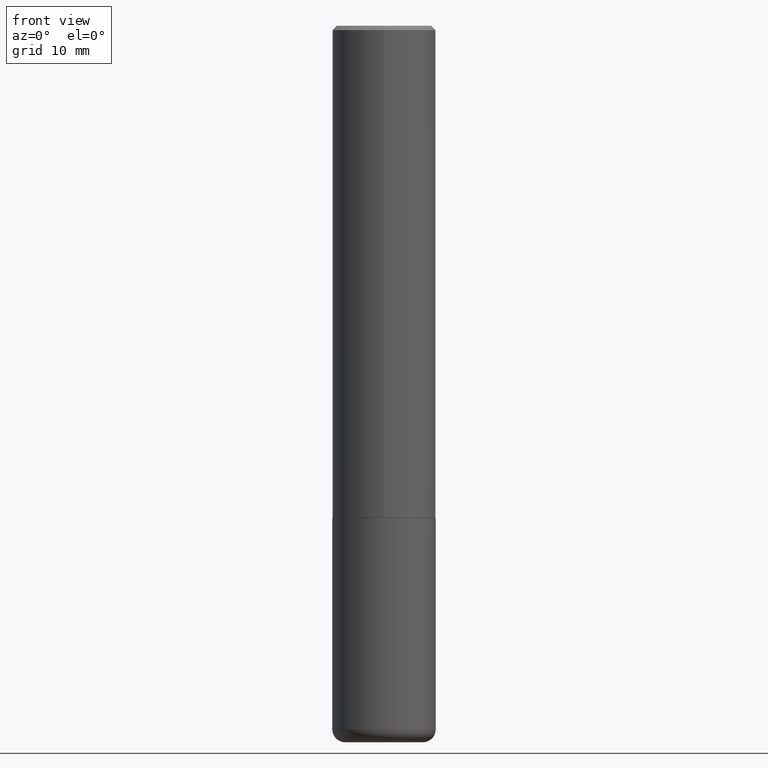
[diagram: clean part render]
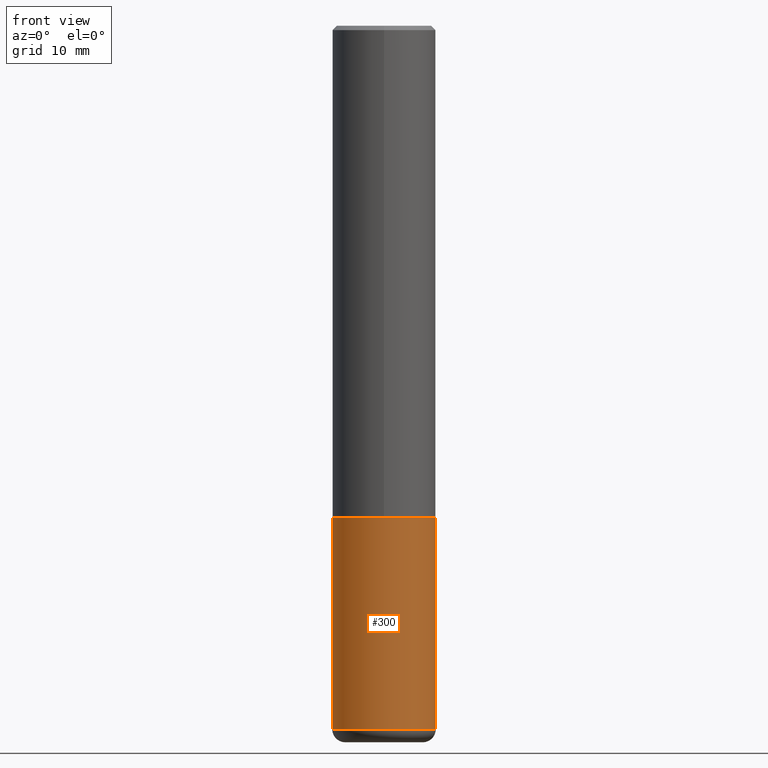
[diagram: same view with one face highlighted and labeled with its STEP entity id]
A machine part, front view. The second image highlights one B-rep face of the part: STEP entity #300.
In plain terms, the highlighted cylindrical surface (partial cylindrical patch) has radius 5.9995 mm, axis along (-0, 0, 1).
Its self-contained STEP definition (entity closure, byte-faithful):
#1 = DIRECTION ( 'NONE',  ( -2.445468806185136877E-29, 3.491481338843145188E-15, 1.000000000000000000 ) ) ;
#2 = CIRCLE ( 'NONE', #391, 0.2362000000000000210 ) ;
#21 = FACE_OUTER_BOUND ( 'NONE', #145, .T. ) ;
#25 = DIRECTION ( 'NONE',  ( -2.445468806185136597E-29, 3.491481338843145583E-15, 1.000000000000000000 ) ) ;
#27 = DIRECTION ( 'NONE',  ( 1.000000000000000000, -6.982962677686266711E-15, 4.876176775795936353E-29 ) ) ;
#36 = VECTOR ( 'NONE', #141, 39.37007874015748143 ) ;
#55 = CARTESIAN_POINT ( 'NONE',  ( -0.2361999999999999378, -9.522021045009570331E-15, -3.207900000000000418 ) ) ;
#57 = CYLINDRICAL_SURFACE ( 'NONE', #126, 0.2361999999999999933 ) ;
#61 = ORIENTED_EDGE ( 'NONE', *, *, #328, .F. ) ;
#64 = EDGE_CURVE ( 'NONE', #211, #255, #299, .T. ) ;
#74 = ORIENTED_EDGE ( 'NONE', *, *, #286, .T. ) ;
#84 = VERTEX_POINT ( 'NONE', #149 ) ;
#108 = CIRCLE ( 'NONE', #340, 0.2361999999999999933 ) ;
#116 = DIRECTION ( 'NONE',  ( -2.445468806185136597E-29, 3.491481338843145583E-15, 1.000000000000000000 ) ) ;
#126 = AXIS2_PLACEMENT_3D ( 'NONE', #155, #25, #27 ) ;
#130 = LINE ( 'NONE', #227, #385 ) ;
#141 = DIRECTION ( 'NONE',  ( -2.445468806185136877E-29, 3.491481338843145188E-15, 1.000000000000000000 ) ) ;
#145 = EDGE_LOOP ( 'NONE', ( #316, #74, #274, #61 ) ) ;
#149 = CARTESIAN_POINT ( 'NONE',  ( 0.2361999999999999378, -1.284969877134442325E-14, -3.207900000000000418 ) ) ;
#155 = CARTESIAN_POINT ( 'NONE',  ( 0.000000000000000000, 0.000000000000000000, 0.000000000000000000 ) ) ;
#211 = VERTEX_POINT ( 'NONE', #55 ) ;
#218 = DIRECTION ( 'NONE',  ( -2.445468806185136597E-29, 3.491481338843145583E-15, 1.000000000000000000 ) ) ;
#225 = DIRECTION ( 'NONE',  ( 1.000000000000000000, -6.982962677686264344E-15, 0.000000000000000000 ) ) ;
#227 = CARTESIAN_POINT ( 'NONE',  ( 0.2361999999999999933, -1.649375784469496131E-15, 1.151752954443000088E-29 ) ) ;
#255 = VERTEX_POINT ( 'NONE', #311 ) ;
#274 = ORIENTED_EDGE ( 'NONE', *, *, #373, .T. ) ;
#283 = CARTESIAN_POINT ( 'NONE',  ( 0.2361999999999999933, -9.484609056967400443E-15, -2.244100000000000428 ) ) ;
#284 = CARTESIAN_POINT ( 'NONE',  ( 5.487876547960065873E-29, -7.835233272497903917E-15, -2.244100000000000428 ) ) ;
#286 = EDGE_CURVE ( 'NONE', #211, #84, #2, .T. ) ;
#299 = LINE ( 'NONE', #305, #36 ) ;
#300 = ADVANCED_FACE ( 'NONE', ( #21 ), #57, .T. ) ;
#304 = VERTEX_POINT ( 'NONE', #283 ) ;
#305 = CARTESIAN_POINT ( 'NONE',  ( -0.2361999999999999933, 1.678301941865356591E-15, -1.161852468318208757E-29 ) ) ;
#311 = CARTESIAN_POINT ( 'NONE',  ( -0.2361999999999999933, -7.839476187821059716E-15, -2.244100000000000428 ) ) ;
#316 = ORIENTED_EDGE ( 'NONE', *, *, #64, .F. ) ;
#328 = EDGE_CURVE ( 'NONE', #255, #304, #108, .T. ) ;
#340 = AXIS2_PLACEMENT_3D ( 'NONE', #284, #218, #376 ) ;
#371 = CARTESIAN_POINT ( 'NONE',  ( 7.844819383361301131E-29, -1.120032298687492830E-14, -3.207900000000000418 ) ) ;
#373 = EDGE_CURVE ( 'NONE', #84, #304, #130, .T. ) ;
#376 = DIRECTION ( 'NONE',  ( 1.000000000000000000, -6.982962677686269077E-15, 0.000000000000000000 ) ) ;
#385 = VECTOR ( 'NONE', #1, 39.37007874015748143 ) ;
#391 = AXIS2_PLACEMENT_3D ( 'NONE', #371, #116, #225 ) ;